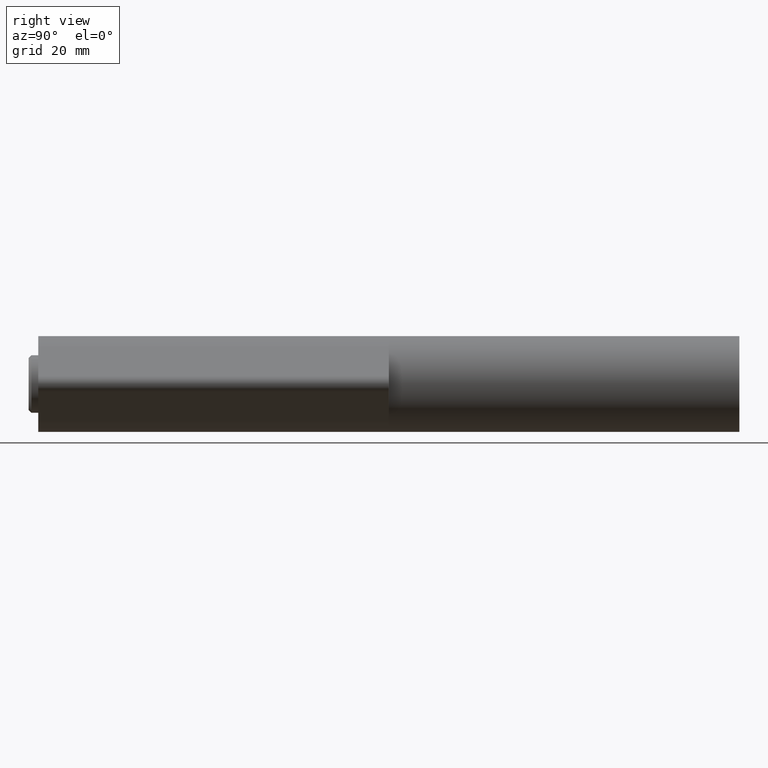
[diagram: clean part render]
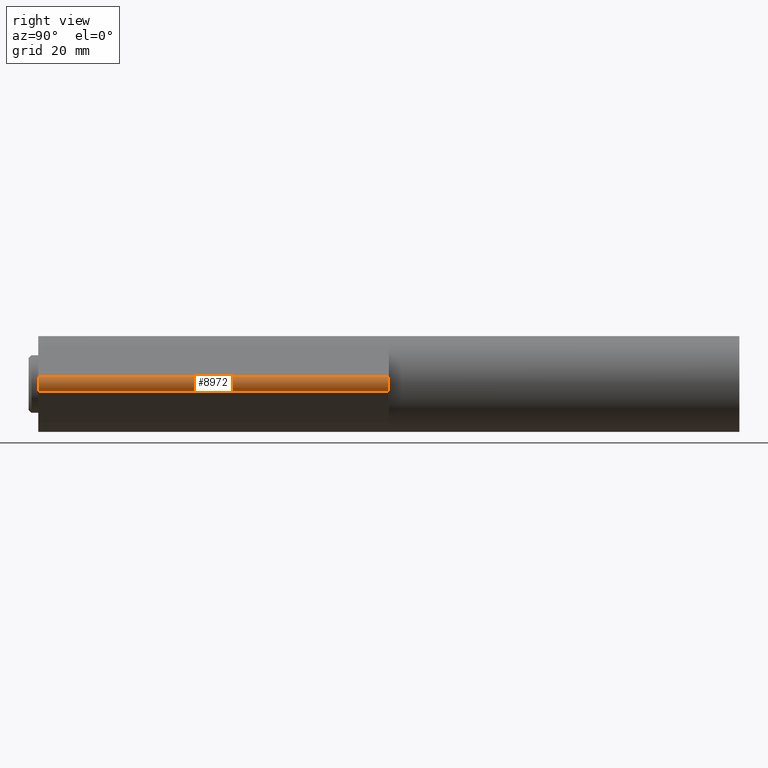
[diagram: same view with one face highlighted and labeled with its STEP entity id]
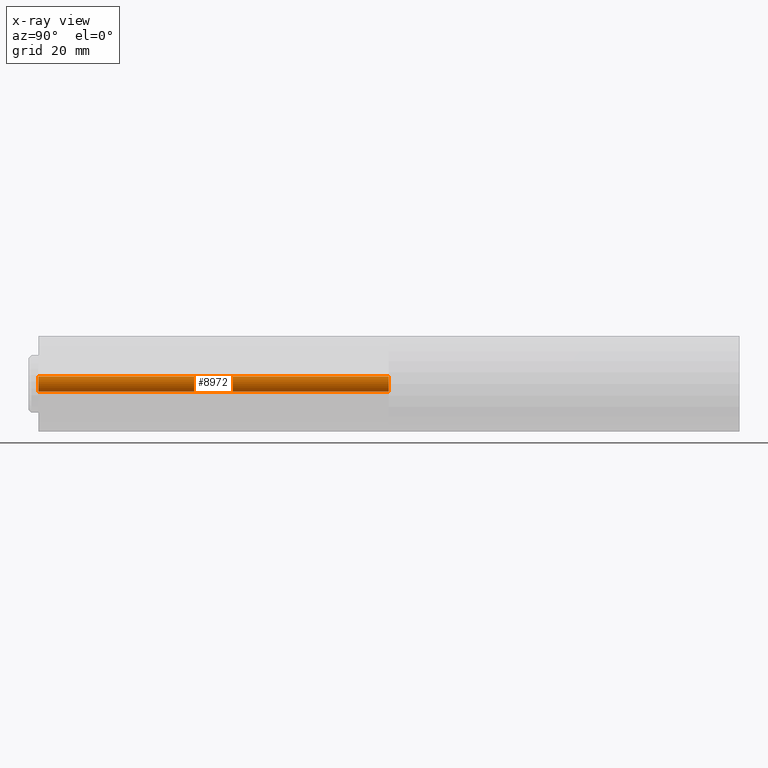
[diagram: x-ray of the same camera — body ghosted, the highlighted face saturated]
A machine part, right view. The second image highlights one B-rep face of the part: STEP entity #8972.
The next image is the same camera in x-ray: the body ghosted, the highlighted face saturated — about 0% of this face is hidden behind the body in this view.
In plain terms, the highlighted cylindrical surface (edge-blend (fillet) strip) has radius 2 mm, axis along (-0, -1, -0).
Its self-contained STEP definition (entity closure, byte-faithful):
#89 = EDGE_CURVE ( 'NONE', #6818, #2605, #603, .T. ) ;
#603 = LINE ( 'NONE', #11224, #759 ) ;
#759 = VECTOR ( 'NONE', #2576, 1000.000000000000000 ) ;
#827 = DIRECTION ( 'NONE',  ( -0.000000000000000000, -1.000000000000000000, -0.000000000000000000 ) ) ;
#1291 = CARTESIAN_POINT ( 'NONE',  ( 14.23076923076923173, -36.50000000000000000, 1.576453963993785123 ) ) ;
#1435 = VERTEX_POINT ( 'NONE', #1291 ) ;
#1513 = EDGE_CURVE ( 'NONE', #1435, #2605, #12035, .T. ) ;
#1750 = CARTESIAN_POINT ( 'NONE',  ( 14.23076923076923173, 36.50000000000000000, -1.576453963993785123 ) ) ;
#2036 = CARTESIAN_POINT ( 'NONE',  ( 13.00000000000000000, 36.50000000000000000, 0.000000000000000000 ) ) ;
#2576 = DIRECTION ( 'NONE',  ( -0.000000000000000000, -1.000000000000000000, -0.000000000000000000 ) ) ;
#2605 = VERTEX_POINT ( 'NONE', #7575 ) ;
#2920 = ORIENTED_EDGE ( 'NONE', *, *, #89, .F. ) ;
#2930 = DIRECTION ( 'NONE',  ( 0.000000000000000000, 0.000000000000000000, -1.000000000000000000 ) ) ;
#3661 = EDGE_LOOP ( 'NONE', ( #5597, #2920, #6167, #9552 ) ) ;
#3886 = DIRECTION ( 'NONE',  ( -0.000000000000000000, -1.000000000000000000, -0.000000000000000000 ) ) ;
#4212 = VECTOR ( 'NONE', #3886, 1000.000000000000000 ) ;
#4387 = AXIS2_PLACEMENT_3D ( 'NONE', #2036, #827, #2930 ) ;
#4440 = DIRECTION ( 'NONE',  ( 0.000000000000000000, 1.000000000000000000, 0.000000000000000000 ) ) ;
#5151 = DIRECTION ( 'NONE',  ( 0.000000000000000000, 1.000000000000000000, 0.000000000000000000 ) ) ;
#5597 = ORIENTED_EDGE ( 'NONE', *, *, #1513, .T. ) ;
#5741 = EDGE_CURVE ( 'NONE', #8212, #6818, #13677, .T. ) ;
#6167 = ORIENTED_EDGE ( 'NONE', *, *, #5741, .F. ) ;
#6818 = VERTEX_POINT ( 'NONE', #1750 ) ;
#6911 = LINE ( 'NONE', #9286, #4212 ) ;
#7145 = EDGE_CURVE ( 'NONE', #8212, #1435, #6911, .T. ) ;
#7566 = CARTESIAN_POINT ( 'NONE',  ( 13.00000000000000000, 36.50000000000000000, 0.000000000000000000 ) ) ;
#7575 = CARTESIAN_POINT ( 'NONE',  ( 14.23076923076923173, -36.50000000000000000, -1.576453963993785123 ) ) ;
#8212 = VERTEX_POINT ( 'NONE', #13211 ) ;
#8972 = ADVANCED_FACE ( 'NONE', ( #11950 ), #11445, .T. ) ;
#9286 = CARTESIAN_POINT ( 'NONE',  ( 14.23076923076923173, 36.50000000000000000, 1.576453963993785123 ) ) ;
#9552 = ORIENTED_EDGE ( 'NONE', *, *, #7145, .T. ) ;
#9810 = AXIS2_PLACEMENT_3D ( 'NONE', #11609, #5151, #10678 ) ;
#10287 = AXIS2_PLACEMENT_3D ( 'NONE', #7566, #4440, #10725 ) ;
#10678 = DIRECTION ( 'NONE',  ( 0.000000000000000000, 0.000000000000000000, 1.000000000000000000 ) ) ;
#10725 = DIRECTION ( 'NONE',  ( 0.000000000000000000, 0.000000000000000000, 1.000000000000000000 ) ) ;
#11224 = CARTESIAN_POINT ( 'NONE',  ( 14.23076923076923173, 36.50000000000000000, -1.576453963993785123 ) ) ;
#11445 = CYLINDRICAL_SURFACE ( 'NONE', #4387, 2.000000000000000888 ) ;
#11609 = CARTESIAN_POINT ( 'NONE',  ( 13.00000000000000000, -36.50000000000000000, 0.000000000000000000 ) ) ;
#11950 = FACE_OUTER_BOUND ( 'NONE', #3661, .T. ) ;
#12035 = CIRCLE ( 'NONE', #9810, 2.000000000000000888 ) ;
#13211 = CARTESIAN_POINT ( 'NONE',  ( 14.23076923076923173, 36.50000000000000000, 1.576453963993785123 ) ) ;
#13677 = CIRCLE ( 'NONE', #10287, 2.000000000000000888 ) ;